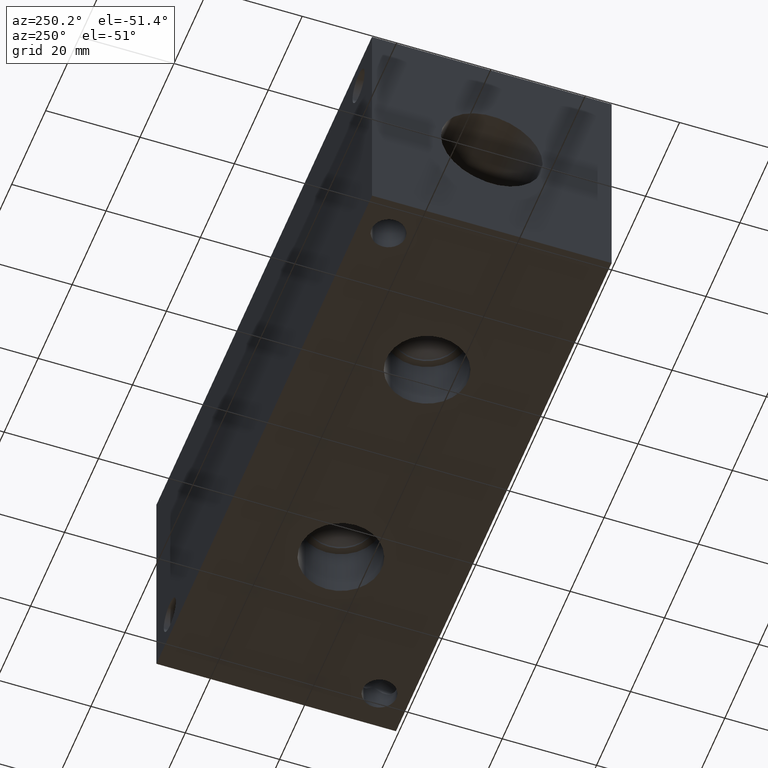
[diagram: clean part render]
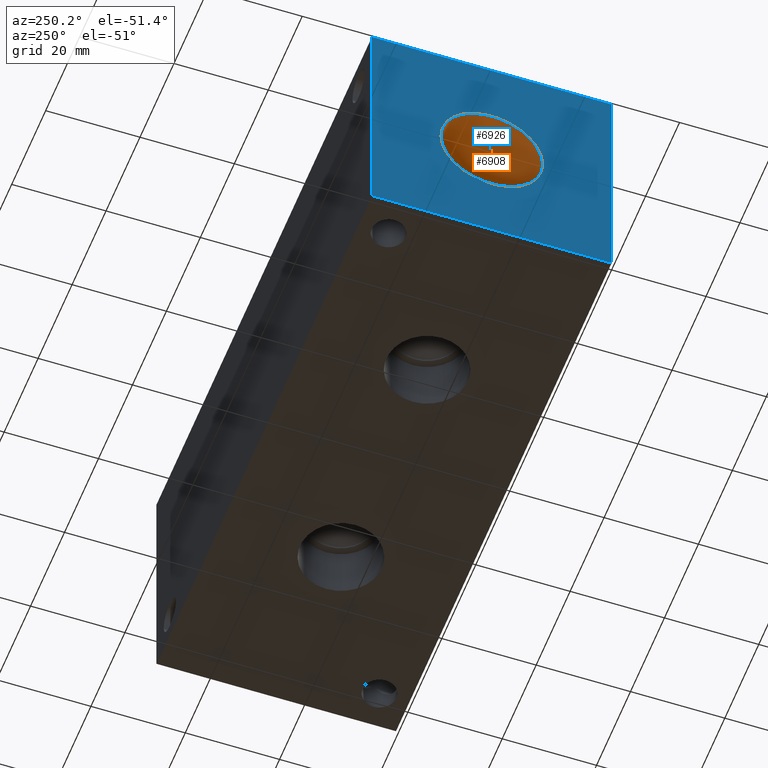
[diagram: same view with the hole feature highlighted: cylindrical wall and planar end face, labeled with their STEP entity ids]
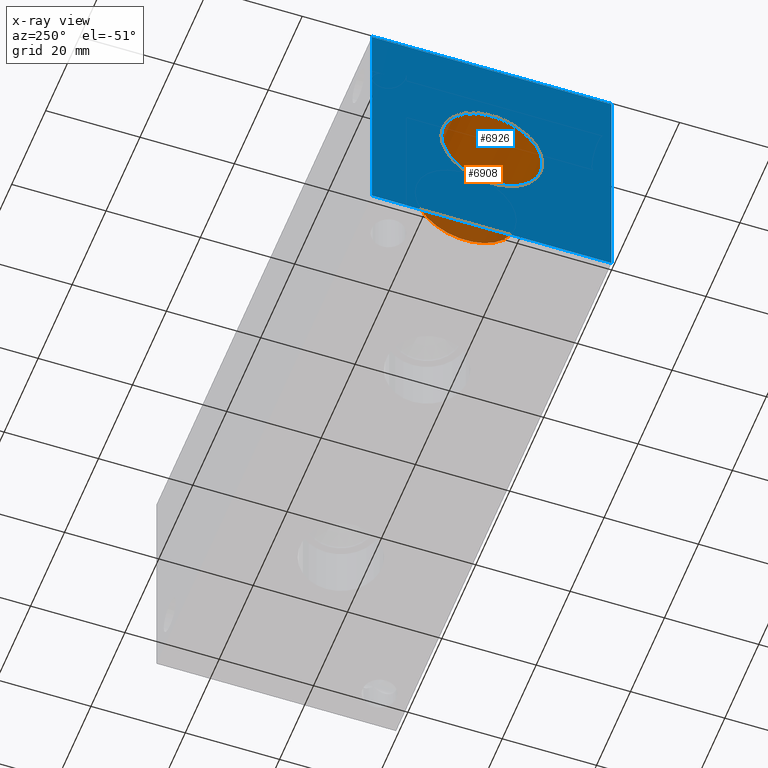
[diagram: x-ray of the same camera — body ghosted, the hole faces saturated]
A machine part, auxiliary view. The highlighted faces form one hole feature of diameter 21.59 mm: the cylindrical wall (entity #6908, orange) and its adjacent planar end face (entity #6926, blue) — they share a circular edge in the B-rep.
The next image is the same camera in x-ray (body ghosted, the hole faces saturated) — the bore reads through the body.
Wall:
#28=CYLINDRICAL_SURFACE('',#7204,10.795);
#79=CIRCLE('',#7201,10.795);
#80=CIRCLE('',#7202,10.795);
#82=CIRCLE('',#7205,10.795);
#83=CIRCLE('',#7206,10.795);
#783=FACE_OUTER_BOUND('',#1170,.T.);
#1170=EDGE_LOOP('',(#5923,#5924,#5925,#5926,#5927,#5928));
#1865=LINE('',#11724,#2548);
#2548=VECTOR('',#8439,10.795);
#3177=VERTEX_POINT('',#11713);
#3178=VERTEX_POINT('',#11714);
#3180=VERTEX_POINT('',#11720);
#3181=VERTEX_POINT('',#11721);
#4104=EDGE_CURVE('',#3177,#3178,#79,.T.);
#4105=EDGE_CURVE('',#3178,#3177,#80,.T.);
#4107=EDGE_CURVE('',#3180,#3181,#82,.T.);
#4108=EDGE_CURVE('',#3181,#3180,#83,.T.);
#4109=EDGE_CURVE('',#3181,#3178,#1865,.T.);
#5923=ORIENTED_EDGE('',*,*,#4107,.F.);
#5924=ORIENTED_EDGE('',*,*,#4108,.F.);
#5925=ORIENTED_EDGE('',*,*,#4109,.T.);
#5926=ORIENTED_EDGE('',*,*,#4104,.F.);
#5927=ORIENTED_EDGE('',*,*,#4105,.F.);
#5928=ORIENTED_EDGE('',*,*,#4109,.F.);
#6908=ADVANCED_FACE('',(#783),#28,.F.);
#7201=AXIS2_PLACEMENT_3D('',#11715,#8427,#8428);
#7202=AXIS2_PLACEMENT_3D('',#11716,#8429,#8430);
#7204=AXIS2_PLACEMENT_3D('',#11719,#8433,#8434);
#7205=AXIS2_PLACEMENT_3D('',#11722,#8435,#8436);
#7206=AXIS2_PLACEMENT_3D('',#11723,#8437,#8438);
#8427=DIRECTION('center_axis',(-1.,0.,0.));
#8428=DIRECTION('ref_axis',(0.,1.,0.));
#8429=DIRECTION('center_axis',(-1.,0.,0.));
#8430=DIRECTION('ref_axis',(0.,1.,0.));
#8433=DIRECTION('center_axis',(-1.,0.,0.));
#8434=DIRECTION('ref_axis',(0.,1.,0.));
#8435=DIRECTION('center_axis',(1.,0.,0.));
#8436=DIRECTION('ref_axis',(0.,1.,0.));
#8437=DIRECTION('center_axis',(1.,0.,0.));
#8438=DIRECTION('ref_axis',(0.,1.,0.));
#8439=DIRECTION('',(1.,0.,0.));
#11713=CARTESIAN_POINT('',(15.367,36.195,25.4));
#11714=CARTESIAN_POINT('',(15.367,14.605,25.4));
#11715=CARTESIAN_POINT('Origin',(15.367,25.4,25.4));
#11716=CARTESIAN_POINT('Origin',(15.367,25.4,25.4));
#11719=CARTESIAN_POINT('Origin',(7.6835,25.4,25.4));
#11720=CARTESIAN_POINT('',(0.,36.195,25.4));
#11721=CARTESIAN_POINT('',(0.,14.605,25.4));
#11722=CARTESIAN_POINT('Origin',(0.,25.4,25.4));
#11723=CARTESIAN_POINT('Origin',(0.,25.4,25.4));
#11724=CARTESIAN_POINT('',(7.6835,14.605,25.4));
End face:
#82=CIRCLE('',#7205,10.795);
#83=CIRCLE('',#7206,10.795);
#447=FACE_BOUND('',#1191,.T.);
#801=FACE_OUTER_BOUND('',#1190,.T.);
#1190=EDGE_LOOP('',(#6014,#6015,#6016,#6017));
#1191=EDGE_LOOP('',(#6018,#6019));
#1586=LINE('',#9469,#2269);
#1881=LINE('',#11810,#2564);
#1882=LINE('',#11811,#2565);
#1883=LINE('',#11812,#2566);
#2269=VECTOR('',#7904,10.);
#2564=VECTOR('',#8543,10.);
#2565=VECTOR('',#8544,10.);
#2566=VECTOR('',#8545,10.);
#2834=VERTEX_POINT('',#9462);
#2837=VERTEX_POINT('',#9467);
#3180=VERTEX_POINT('',#11720);
#3181=VERTEX_POINT('',#11721);
#3206=VERTEX_POINT('',#11808);
#3207=VERTEX_POINT('',#11809);
#3606=EDGE_CURVE('',#2837,#2834,#1586,.T.);
#4107=EDGE_CURVE('',#3180,#3181,#82,.T.);
#4108=EDGE_CURVE('',#3181,#3180,#83,.T.);
#4151=EDGE_CURVE('',#3206,#3207,#1881,.T.);
#4152=EDGE_CURVE('',#3207,#2834,#1882,.T.);
#4153=EDGE_CURVE('',#3206,#2837,#1883,.T.);
#6014=ORIENTED_EDGE('',*,*,#4151,.T.);
#6015=ORIENTED_EDGE('',*,*,#4152,.T.);
#6016=ORIENTED_EDGE('',*,*,#3606,.F.);
#6017=ORIENTED_EDGE('',*,*,#4153,.F.);
#6018=ORIENTED_EDGE('',*,*,#4107,.T.);
#6019=ORIENTED_EDGE('',*,*,#4108,.T.);
#6273=PLANE('',#7250);
#6926=ADVANCED_FACE('',(#801,#447),#6273,.T.);
#7205=AXIS2_PLACEMENT_3D('',#11722,#8435,#8436);
#7206=AXIS2_PLACEMENT_3D('',#11723,#8437,#8438);
#7250=AXIS2_PLACEMENT_3D('',#11807,#8541,#8542);
#7904=DIRECTION('',(0.,-1.,0.));
#8435=DIRECTION('center_axis',(1.,0.,0.));
#8436=DIRECTION('ref_axis',(0.,1.,0.));
#8437=DIRECTION('center_axis',(1.,0.,0.));
#8438=DIRECTION('ref_axis',(0.,1.,0.));
#8541=DIRECTION('center_axis',(-1.,0.,0.));
#8542=DIRECTION('ref_axis',(0.,-1.,0.));
#8543=DIRECTION('',(0.,-1.,0.));
#8544=DIRECTION('',(0.,0.,1.));
#8545=DIRECTION('',(0.,0.,1.));
#9462=CARTESIAN_POINT('',(0.,0.,50.8));
#9467=CARTESIAN_POINT('',(0.,50.8,50.8));
#9469=CARTESIAN_POINT('',(0.,50.8,50.8));
#11720=CARTESIAN_POINT('',(0.,36.195,25.4));
#11721=CARTESIAN_POINT('',(0.,14.605,25.4));
#11722=CARTESIAN_POINT('Origin',(0.,25.4,25.4));
#11723=CARTESIAN_POINT('Origin',(0.,25.4,25.4));
#11807=CARTESIAN_POINT('Origin',(0.,50.8,0.));
#11808=CARTESIAN_POINT('',(0.,50.8,0.));
#11809=CARTESIAN_POINT('',(0.,0.,0.));
#11810=CARTESIAN_POINT('',(0.,50.8,0.));
#11811=CARTESIAN_POINT('',(0.,0.,0.));
#11812=CARTESIAN_POINT('',(0.,50.8,0.));